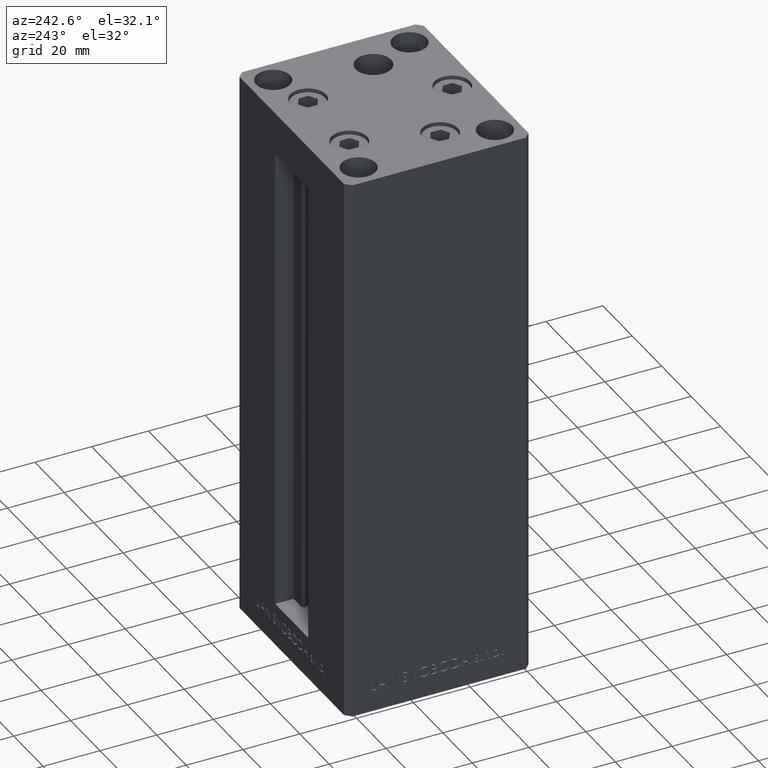
[diagram: clean part render]
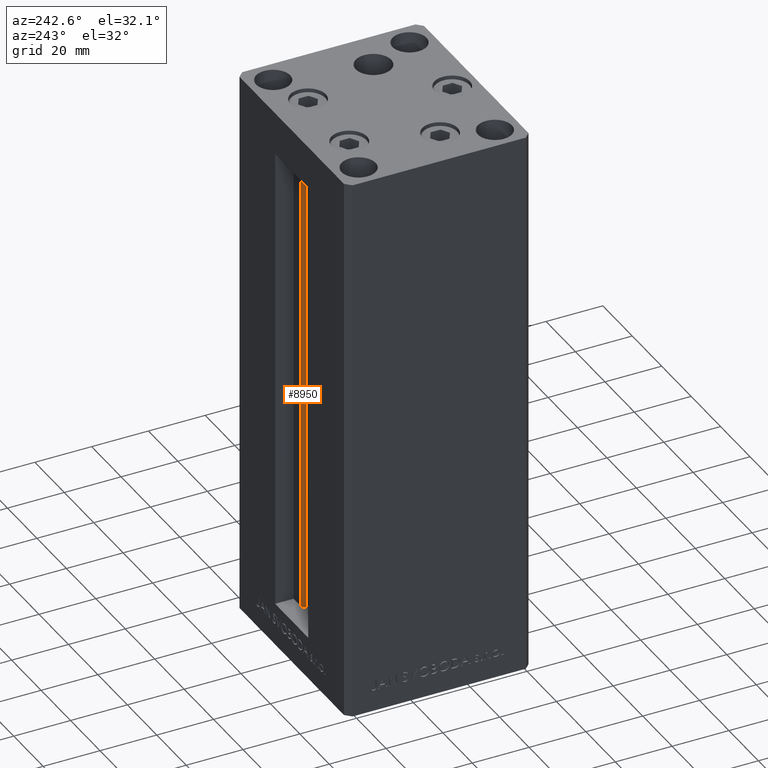
[diagram: same view with one face highlighted and labeled with its STEP entity id]
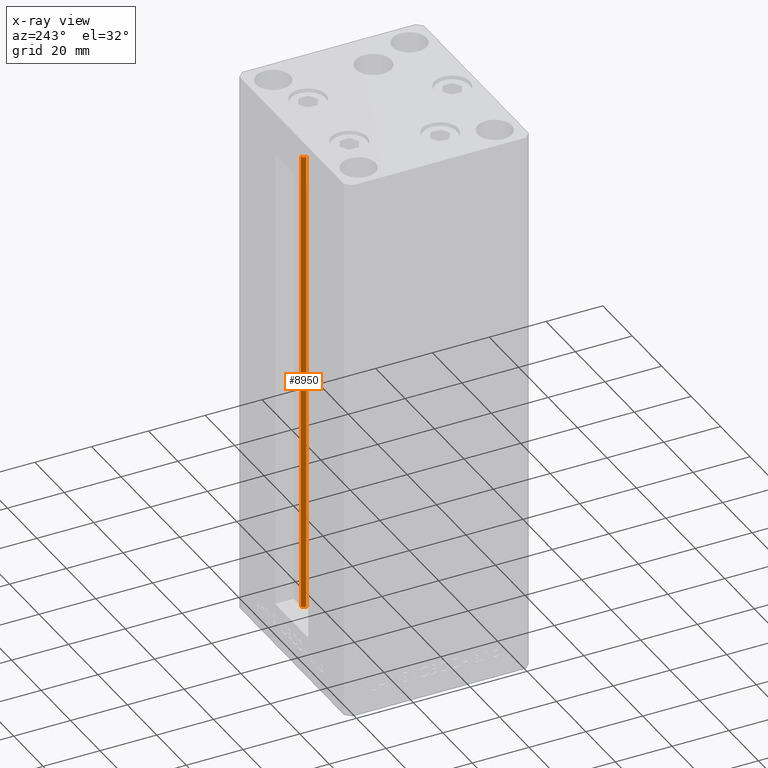
[diagram: x-ray of the same camera — body ghosted, the highlighted face saturated]
A machine part, auxiliary view. The second image highlights one B-rep face of the part: STEP entity #8950.
The next image is the same camera in x-ray: the body ghosted, the highlighted face saturated — about 0% of this face is hidden behind the body in this view.
In plain terms, the highlighted cylindrical surface (edge-blend (fillet) strip) has radius 0.9333 mm, axis along (0, 0, 1).
Its self-contained STEP definition (entity closure, byte-faithful):
#917 = VERTEX_POINT ( 'NONE', #45109 ) ;
#1641 = CARTESIAN_POINT ( 'NONE',  ( 5.375042956467947164, 24.59999999999899245, 0.000000000000000000 ) ) ;
#1882 = DIRECTION ( 'NONE',  ( -0.000000000000000000, -0.000000000000000000, 1.000000000000000000 ) ) ;
#1981 = EDGE_CURVE ( 'NONE', #917, #38289, #25663, .T. ) ;
#4347 = CARTESIAN_POINT ( 'NONE',  ( 5.375042956467946276, 24.59999999999899245, 166.0000000000000000 ) ) ;
#5138 = FACE_OUTER_BOUND ( 'NONE', #20078, .T. ) ;
#5446 = EDGE_CURVE ( 'NONE', #12412, #917, #47514, .T. ) ;
#8325 = DIRECTION ( 'NONE',  ( 1.000000000000000000, 0.000000000000000000, 0.000000000000000000 ) ) ;
#8950 = ADVANCED_FACE ( 'NONE', ( #5138 ), #20339, .T. ) ;
#9763 = DIRECTION ( 'NONE',  ( 1.000000000000000000, 0.000000000000000000, 0.000000000000000000 ) ) ;
#10066 = AXIS2_PLACEMENT_3D ( 'NONE', #15794, #26998, #8325 ) ;
#10247 = CARTESIAN_POINT ( 'NONE',  ( 6.183333333334001480, 25.06666666666599141, 166.0000000000000000 ) ) ;
#11320 = VECTOR ( 'NONE', #1882, 1000.000000000000000 ) ;
#12412 = VERTEX_POINT ( 'NONE', #25580 ) ;
#12869 = DIRECTION ( 'NONE',  ( -0.000000000000000000, -0.000000000000000000, 1.000000000000000000 ) ) ;
#13480 = DIRECTION ( 'NONE',  ( -0.000000000000000000, -0.000000000000000000, 1.000000000000000000 ) ) ;
#14538 = ORIENTED_EDGE ( 'NONE', *, *, #35674, .T. ) ;
#15794 = CARTESIAN_POINT ( 'NONE',  ( 6.183333333334001480, 25.06666666666599141, 0.000000000000000000 ) ) ;
#20078 = EDGE_LOOP ( 'NONE', ( #48030, #31661, #35271, #14538 ) ) ;
#20339 = CYLINDRICAL_SURFACE ( 'NONE', #39676, 0.9333333333340008142 ) ;
#21073 = LINE ( 'NONE', #1641, #11320 ) ;
#21127 = VECTOR ( 'NONE', #13480, 1000.000000000000000 ) ;
#21929 = CARTESIAN_POINT ( 'NONE',  ( 6.183333333334001480, 25.99999999999999289, 0.000000000000000000 ) ) ;
#22253 = EDGE_CURVE ( 'NONE', #12412, #38219, #21073, .T. ) ;
#23298 = CIRCLE ( 'NONE', #39204, 0.9333333333340008142 ) ;
#25580 = CARTESIAN_POINT ( 'NONE',  ( 5.375042956467947164, 24.59999999999899245, 0.000000000000000000 ) ) ;
#25663 = LINE ( 'NONE', #21929, #21127 ) ;
#26998 = DIRECTION ( 'NONE',  ( -0.000000000000000000, -0.000000000000000000, -1.000000000000000000 ) ) ;
#28054 = DIRECTION ( 'NONE',  ( 1.000000000000000000, 0.000000000000000000, 0.000000000000000000 ) ) ;
#31661 = ORIENTED_EDGE ( 'NONE', *, *, #5446, .F. ) ;
#35271 = ORIENTED_EDGE ( 'NONE', *, *, #22253, .T. ) ;
#35674 = EDGE_CURVE ( 'NONE', #38219, #38289, #23298, .T. ) ;
#38219 = VERTEX_POINT ( 'NONE', #4347 ) ;
#38289 = VERTEX_POINT ( 'NONE', #44992 ) ;
#39204 = AXIS2_PLACEMENT_3D ( 'NONE', #10247, #41159, #9763 ) ;
#39676 = AXIS2_PLACEMENT_3D ( 'NONE', #47025, #12869, #28054 ) ;
#41159 = DIRECTION ( 'NONE',  ( 0.000000000000000000, 0.000000000000000000, -1.000000000000000000 ) ) ;
#44992 = CARTESIAN_POINT ( 'NONE',  ( 6.183333333334001480, 25.99999999999999289, 166.0000000000000000 ) ) ;
#45109 = CARTESIAN_POINT ( 'NONE',  ( 6.183333333334001480, 25.99999999999999289, 0.000000000000000000 ) ) ;
#47025 = CARTESIAN_POINT ( 'NONE',  ( 6.183333333334001480, 25.06666666666599141, 0.000000000000000000 ) ) ;
#47514 = CIRCLE ( 'NONE', #10066, 0.9333333333340008142 ) ;
#48030 = ORIENTED_EDGE ( 'NONE', *, *, #1981, .F. ) ;